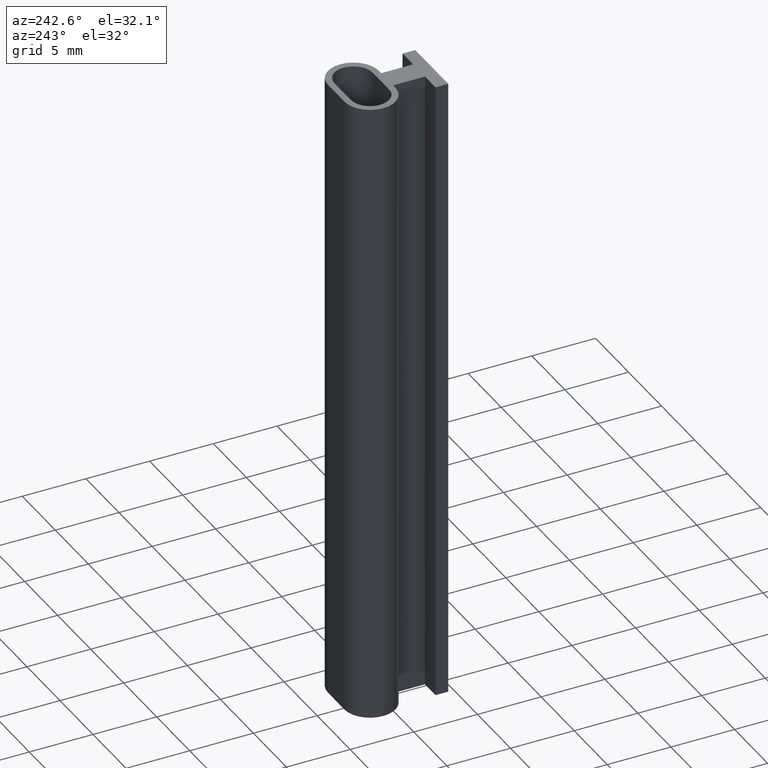
[diagram: clean part render]
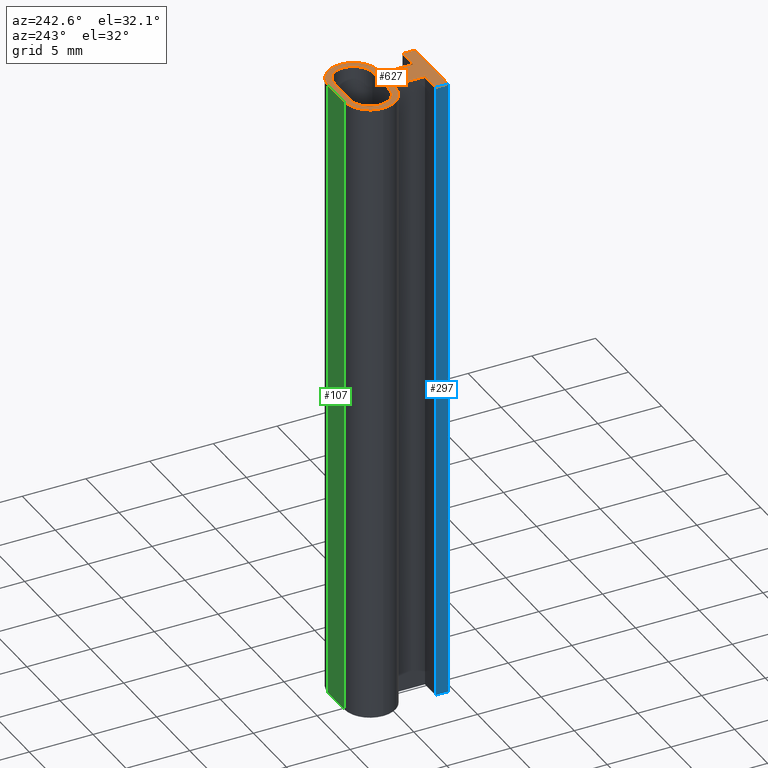
[diagram: same view with three faces highlighted in distinct colors, each labeled with its STEP entity id]
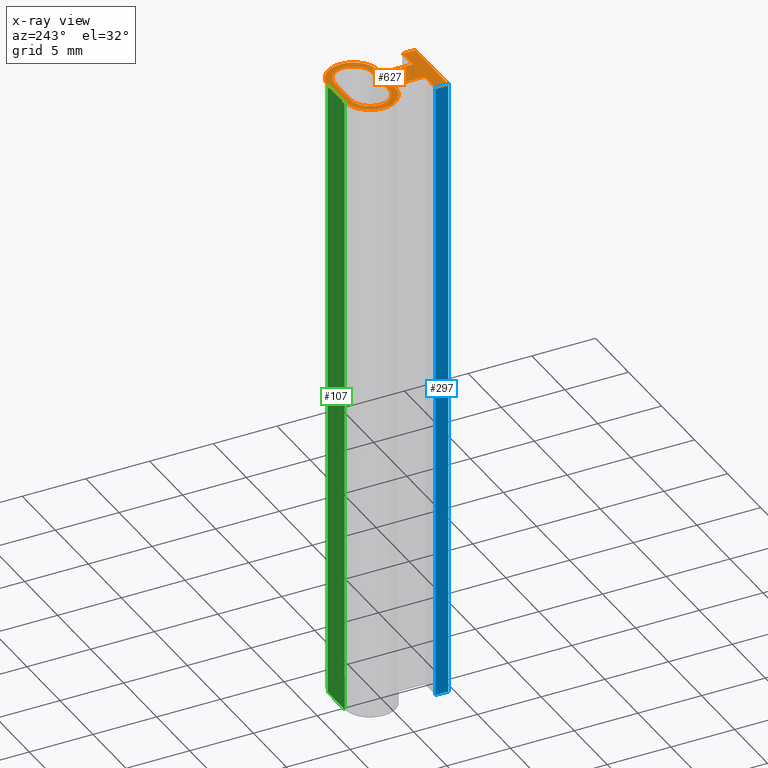
[diagram: x-ray of the same camera — body ghosted, the three highlighted faces saturated]
A machine part, auxiliary view with three faces highlighted in distinct colors.
The next image is the same camera in x-ray (body ghosted, the three faces saturated) — at least one of them is partly hidden behind the body in this view.
Their STEP definitions:

[orange] entity #627 — the highlighted planar face has unit normal (0, 0, 1).
#18=CARTESIAN_POINT('',(3.250000000000000,1.500000000000000,0.0));
#19=VERTEX_POINT('',#18);
#26=CARTESIAN_POINT('',(1.250000000000000,-0.500000000000000,0.0));
#27=VERTEX_POINT('',#26);
#28=CARTESIAN_POINT('',(1.250000000000000,1.500000000000000,0.0));
#29=DIRECTION('',(0.0,0.0,1.0));
#30=DIRECTION('',(1.0,0.0,0.0));
#31=AXIS2_PLACEMENT_3D('',#28,#29,#30);
#32=CIRCLE('',#31,2.0);
#33=EDGE_CURVE('',#27,#19,#32,.T.);
#58=CARTESIAN_POINT('',(1.250000000000000,3.500000000000000,0.0));
#59=VERTEX_POINT('',#58);
#66=CARTESIAN_POINT('',(1.250000000000000,1.500000000000000,0.0));
#67=DIRECTION('',(0.0,0.0,1.0));
#68=DIRECTION('',(0.0,1.0,0.0));
#69=AXIS2_PLACEMENT_3D('',#66,#67,#68);
#70=CIRCLE('',#69,2.0);
#71=EDGE_CURVE('',#19,#59,#70,.T.);
#90=CARTESIAN_POINT('',(-1.250000000000000,3.500000000000000,0.0));
#91=VERTEX_POINT('',#90);
#98=CARTESIAN_POINT('',(1.250000000000000,3.500000000000000,0.0));
#99=DIRECTION('',(-1.0,0.0,0.0));
#100=VECTOR('',#99,2.500000000000000);
#101=LINE('',#98,#100);
#102=EDGE_CURVE('',#59,#91,#101,.T.);
#122=CARTESIAN_POINT('',(-3.250000000000000,1.500000000000000,0.0));
#123=VERTEX_POINT('',#122);
#130=CARTESIAN_POINT('',(-1.250000000000000,1.500000000000000,0.0));
#131=DIRECTION('',(0.0,0.0,1.0));
#132=DIRECTION('',(-1.0,0.0,0.0));
#133=AXIS2_PLACEMENT_3D('',#130,#131,#132);
#134=CIRCLE('',#133,2.0);
#135=EDGE_CURVE('',#91,#123,#134,.T.);
#155=CARTESIAN_POINT('',(-1.250000000000000,-0.500000000000000,0.0));
#156=VERTEX_POINT('',#155);
#163=CARTESIAN_POINT('',(-1.250000000000000,1.500000000000000,0.0));
#164=DIRECTION('',(0.0,0.0,1.0));
#165=DIRECTION('',(-1.0,0.0,0.0));
#166=AXIS2_PLACEMENT_3D('',#163,#164,#165);
#167=CIRCLE('',#166,2.0);
#168=EDGE_CURVE('',#123,#156,#167,.T.);
#187=CARTESIAN_POINT('',(-0.900000000000000,-0.500000000000000,0.0));
#188=VERTEX_POINT('',#187);
#195=CARTESIAN_POINT('',(-1.250000000000000,-0.500000000000000,0.0));
#196=DIRECTION('',(1.0,0.0,0.0));
#197=VECTOR('',#196,0.350000000000000);
#198=LINE('',#195,#197);
#199=EDGE_CURVE('',#156,#188,#198,.T.);
#218=CARTESIAN_POINT('',(-0.900000000000000,-3.0,0.0));
#219=VERTEX_POINT('',#218);
#226=CARTESIAN_POINT('',(-0.900000000000000,-0.500000000000000,0.0));
#227=DIRECTION('',(0.0,-1.0,0.0));
#228=VECTOR('',#227,2.500000000000000);
#229=LINE('',#226,#228);
#230=EDGE_CURVE('',#188,#219,#229,.T.);
#249=CARTESIAN_POINT('',(-2.500000000000000,-3.0,0.0));
#250=VERTEX_POINT('',#249);
#257=CARTESIAN_POINT('',(-0.900000000000000,-3.0,0.0));
#258=DIRECTION('',(-1.0,0.0,0.0));
#259=VECTOR('',#258,1.600000000000000);
#260=LINE('',#257,#259);
#261=EDGE_CURVE('',#219,#250,#260,.T.);
#280=CARTESIAN_POINT('',(-2.500000000000000,-4.0,0.0));
#281=VERTEX_POINT('',#280);
#288=CARTESIAN_POINT('',(-2.500000000000000,-3.0,0.0));
#289=DIRECTION('',(0.0,-1.0,0.0));
#290=VECTOR('',#289,1.0);
#291=LINE('',#288,#290);
#292=EDGE_CURVE('',#250,#281,#291,.T.);
#311=CARTESIAN_POINT('',(2.500000000000000,-4.0,0.0));
#312=VERTEX_POINT('',#311);
#319=CARTESIAN_POINT('',(-2.500000000000000,-4.0,0.0));
#320=DIRECTION('',(1.0,0.0,0.0));
#321=VECTOR('',#320,5.0);
#322=LINE('',#319,#321);
#323=EDGE_CURVE('',#281,#312,#322,.T.);
#342=CARTESIAN_POINT('',(2.500000000000000,-3.0,0.0));
#343=VERTEX_POINT('',#342);
#350=CARTESIAN_POINT('',(2.500000000000000,-4.0,0.0));
#351=DIRECTION('',(0.0,1.0,0.0));
#352=VECTOR('',#351,1.0);
#353=LINE('',#350,#352);
#354=EDGE_CURVE('',#312,#343,#353,.T.);
#373=CARTESIAN_POINT('',(0.900000000000000,-3.0,0.0));
#374=VERTEX_POINT('',#373);
#381=CARTESIAN_POINT('',(2.500000000000000,-3.0,0.0));
#382=DIRECTION('',(-1.0,0.0,0.0));
#383=VECTOR('',#382,1.600000000000000);
#384=LINE('',#381,#383);
#385=EDGE_CURVE('',#343,#374,#384,.T.);
#404=CARTESIAN_POINT('',(0.900000000000000,-0.500000000000000,0.0));
#405=VERTEX_POINT('',#404);
#412=CARTESIAN_POINT('',(0.900000000000000,-3.0,0.0));
#413=DIRECTION('',(0.0,1.0,0.0));
#414=VECTOR('',#413,2.500000000000000);
#415=LINE('',#412,#414);
#416=EDGE_CURVE('',#374,#405,#415,.T.);
#434=CARTESIAN_POINT('',(0.900000000000000,-0.500000000000000,0.0));
#435=DIRECTION('',(1.0,0.0,0.0));
#436=VECTOR('',#435,0.350000000000000);
#437=LINE('',#434,#436);
#438=EDGE_CURVE('',#405,#27,#437,.T.);
#459=CARTESIAN_POINT('',(1.250000000000000,3.0,0.0));
#460=VERTEX_POINT('',#459);
#467=CARTESIAN_POINT('',(-1.250000000000000,3.0,0.0));
#468=VERTEX_POINT('',#467);
#469=CARTESIAN_POINT('',(-1.250000000000000,3.0,0.0));
#470=DIRECTION('',(1.0,0.0,0.0));
#471=VECTOR('',#470,2.500000000000000);
#472=LINE('',#469,#471);
#473=EDGE_CURVE('',#468,#460,#472,.T.);
#498=CARTESIAN_POINT('',(1.250000000000000,0.0,0.0));
#499=VERTEX_POINT('',#498);
#506=CARTESIAN_POINT('',(1.250000000000000,1.500000000000000,0.0));
#507=DIRECTION('',(0.0,0.0,-1.0));
#508=DIRECTION('',(0.0,-1.0,0.0));
#509=AXIS2_PLACEMENT_3D('',#506,#507,#508);
#510=CIRCLE('',#509,1.500000000000000);
#511=EDGE_CURVE('',#460,#499,#510,.T.);
#530=CARTESIAN_POINT('',(-1.250000000000000,0.0,0.0));
#531=VERTEX_POINT('',#530);
#538=CARTESIAN_POINT('',(1.250000000000000,0.0,0.0));
#539=DIRECTION('',(-1.0,0.0,0.0));
#540=VECTOR('',#539,2.500000000000000);
#541=LINE('',#538,#540);
#542=EDGE_CURVE('',#499,#531,#541,.T.);
#561=CARTESIAN_POINT('',(-1.250000000000000,1.500000000000000,0.0));
#562=DIRECTION('',(0.0,0.0,-1.0));
#563=DIRECTION('',(0.0,1.0,0.0));
#564=AXIS2_PLACEMENT_3D('',#561,#562,#563);
#565=CIRCLE('',#564,1.500000000000000);
#566=EDGE_CURVE('',#531,#468,#565,.T.);
#600=CARTESIAN_POINT('',(-3.900000518320482,-4.750000518328143,0.0));
#601=DIRECTION('',(0.0,0.0,1.0));
#602=DIRECTION('',(1.0,0.0,0.0));
#603=AXIS2_PLACEMENT_3D('',#600,#601,#602);
#604=PLANE('',#603);
#605=ORIENTED_EDGE('',*,*,#33,.T.);
#606=ORIENTED_EDGE('',*,*,#71,.T.);
#607=ORIENTED_EDGE('',*,*,#102,.T.);
#608=ORIENTED_EDGE('',*,*,#135,.T.);
#609=ORIENTED_EDGE('',*,*,#168,.T.);
#610=ORIENTED_EDGE('',*,*,#199,.T.);
#611=ORIENTED_EDGE('',*,*,#230,.T.);
#612=ORIENTED_EDGE('',*,*,#261,.T.);
#613=ORIENTED_EDGE('',*,*,#292,.T.);
#614=ORIENTED_EDGE('',*,*,#323,.T.);
#615=ORIENTED_EDGE('',*,*,#354,.T.);
#616=ORIENTED_EDGE('',*,*,#385,.T.);
#617=ORIENTED_EDGE('',*,*,#416,.T.);
#618=ORIENTED_EDGE('',*,*,#438,.T.);
#619=EDGE_LOOP('',(#605,#606,#607,#608,#609,#610,#611,#612,#613,#614,#615,#616,#617,#618));
#620=FACE_OUTER_BOUND('',#619,.T.);
#621=ORIENTED_EDGE('',*,*,#473,.T.);
#622=ORIENTED_EDGE('',*,*,#511,.T.);
#623=ORIENTED_EDGE('',*,*,#542,.T.);
#624=ORIENTED_EDGE('',*,*,#566,.T.);
#625=EDGE_LOOP('',(#621,#622,#623,#624));
#626=FACE_BOUND('',#625,.T.);
#627=ADVANCED_FACE('',(#620,#626),#604,.T.);

[blue] entity #297 — the highlighted planar face has unit normal (-1, 0, 0).
#241=CARTESIAN_POINT('',(-2.500000000000000,-3.0,-50.0));
#242=VERTEX_POINT('',#241);
#249=CARTESIAN_POINT('',(-2.500000000000000,-3.0,0.0));
#250=VERTEX_POINT('',#249);
#251=CARTESIAN_POINT('',(-2.500000000000000,-3.0,-50.0));
#252=DIRECTION('',(0.0,0.0,1.0));
#253=VECTOR('',#252,50.0);
#254=LINE('',#251,#253);
#255=EDGE_CURVE('',#242,#250,#254,.T.);
#267=CARTESIAN_POINT('',(-2.500000000000000,-3.0,-50.0));
#268=DIRECTION('',(-1.0,0.0,0.0));
#269=DIRECTION('',(0.0,-1.0,0.0));
#270=AXIS2_PLACEMENT_3D('',#267,#268,#269);
#271=PLANE('',#270);
#272=CARTESIAN_POINT('',(-2.500000000000000,-4.0,-50.0));
#273=VERTEX_POINT('',#272);
#274=CARTESIAN_POINT('',(-2.500000000000000,-3.0,-50.0));
#275=DIRECTION('',(0.0,-1.0,0.0));
#276=VECTOR('',#275,1.0);
#277=LINE('',#274,#276);
#278=EDGE_CURVE('',#242,#273,#277,.T.);
#279=ORIENTED_EDGE('',*,*,#278,.T.);
#280=CARTESIAN_POINT('',(-2.500000000000000,-4.0,0.0));
#281=VERTEX_POINT('',#280);
#282=CARTESIAN_POINT('',(-2.500000000000000,-4.0,-50.0));
#283=DIRECTION('',(0.0,0.0,1.0));
#284=VECTOR('',#283,50.0);
#285=LINE('',#282,#284);
#286=EDGE_CURVE('',#273,#281,#285,.T.);
#287=ORIENTED_EDGE('',*,*,#286,.T.);
#288=CARTESIAN_POINT('',(-2.500000000000000,-3.0,0.0));
#289=DIRECTION('',(0.0,-1.0,0.0));
#290=VECTOR('',#289,1.0);
#291=LINE('',#288,#290);
#292=EDGE_CURVE('',#250,#281,#291,.T.);
#293=ORIENTED_EDGE('',*,*,#292,.F.);
#294=ORIENTED_EDGE('',*,*,#255,.F.);
#295=EDGE_LOOP('',(#279,#287,#293,#294));
#296=FACE_OUTER_BOUND('',#295,.T.);
#297=ADVANCED_FACE('',(#296),#271,.T.);

[green] entity #107 — the highlighted planar face has unit normal (0, 1, 0).
#49=CARTESIAN_POINT('',(1.250000000000000,3.500000000000000,-50.0));
#50=VERTEX_POINT('',#49);
#58=CARTESIAN_POINT('',(1.250000000000000,3.500000000000000,0.0));
#59=VERTEX_POINT('',#58);
#60=CARTESIAN_POINT('',(1.250000000000000,3.500000000000000,-50.0));
#61=DIRECTION('',(0.0,0.0,1.0));
#62=VECTOR('',#61,50.0);
#63=LINE('',#60,#62);
#64=EDGE_CURVE('',#50,#59,#63,.T.);
#77=CARTESIAN_POINT('',(1.250000000000000,3.500000000000000,-50.0));
#78=DIRECTION('',(0.0,1.0,0.0));
#79=DIRECTION('',(-1.0,0.0,0.0));
#80=AXIS2_PLACEMENT_3D('',#77,#78,#79);
#81=PLANE('',#80);
#82=CARTESIAN_POINT('',(-1.250000000000000,3.500000000000000,-50.0));
#83=VERTEX_POINT('',#82);
#84=CARTESIAN_POINT('',(1.250000000000000,3.500000000000000,-50.0));
#85=DIRECTION('',(-1.0,0.0,0.0));
#86=VECTOR('',#85,2.500000000000000);
#87=LINE('',#84,#86);
#88=EDGE_CURVE('',#50,#83,#87,.T.);
#89=ORIENTED_EDGE('',*,*,#88,.T.);
#90=CARTESIAN_POINT('',(-1.250000000000000,3.500000000000000,0.0));
#91=VERTEX_POINT('',#90);
#92=CARTESIAN_POINT('',(-1.250000000000000,3.500000000000000,-50.0));
#93=DIRECTION('',(0.0,0.0,1.0));
#94=VECTOR('',#93,50.0);
#95=LINE('',#92,#94);
#96=EDGE_CURVE('',#83,#91,#95,.T.);
#97=ORIENTED_EDGE('',*,*,#96,.T.);
#98=CARTESIAN_POINT('',(1.250000000000000,3.500000000000000,0.0));
#99=DIRECTION('',(-1.0,0.0,0.0));
#100=VECTOR('',#99,2.500000000000000);
#101=LINE('',#98,#100);
#102=EDGE_CURVE('',#59,#91,#101,.T.);
#103=ORIENTED_EDGE('',*,*,#102,.F.);
#104=ORIENTED_EDGE('',*,*,#64,.F.);
#105=EDGE_LOOP('',(#89,#97,#103,#104));
#106=FACE_OUTER_BOUND('',#105,.T.);
#107=ADVANCED_FACE('',(#106),#81,.T.);